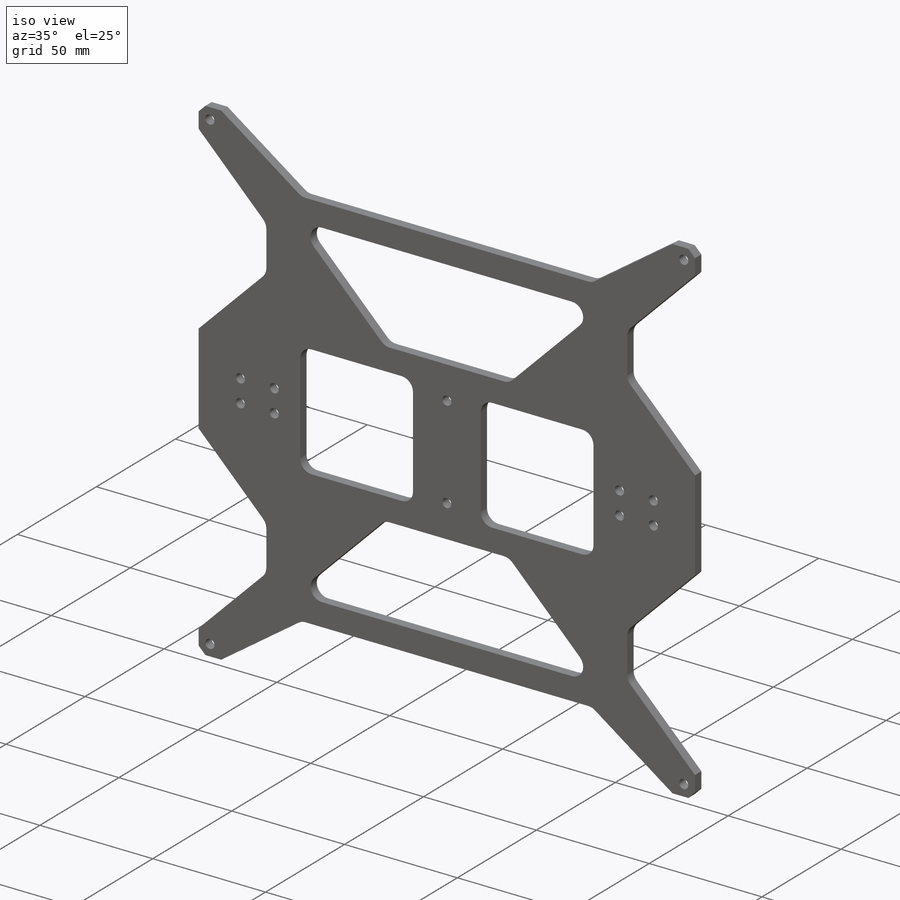
[diagram: iso view]
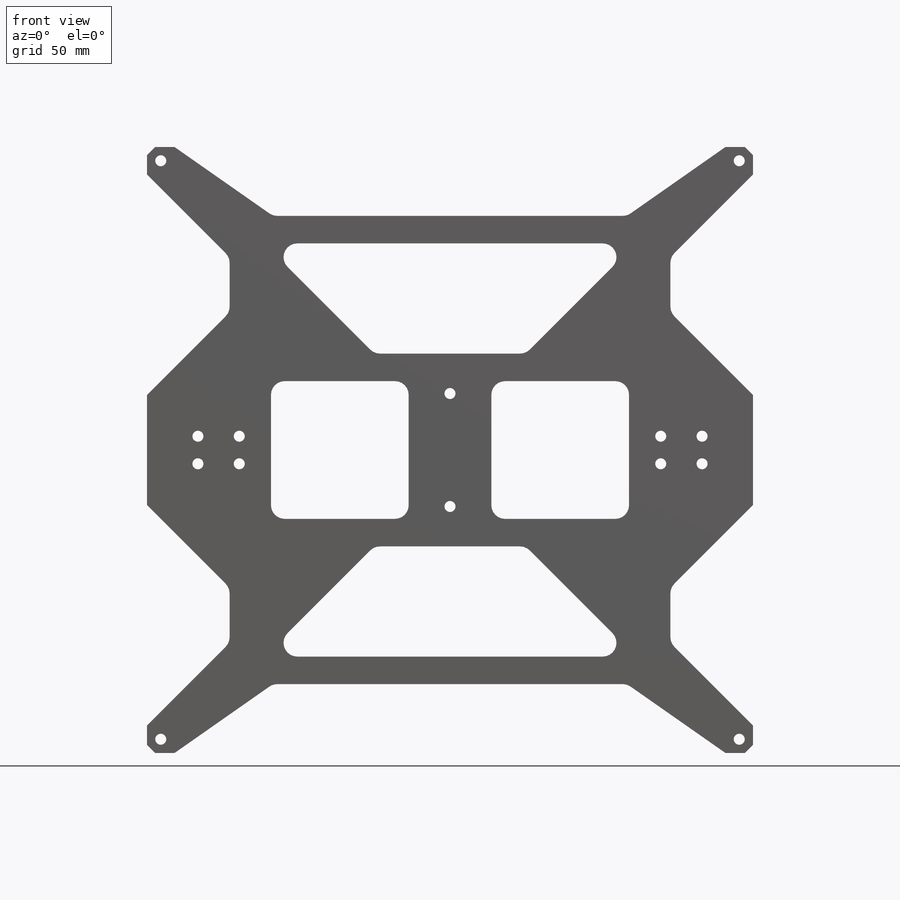
[diagram: front view]
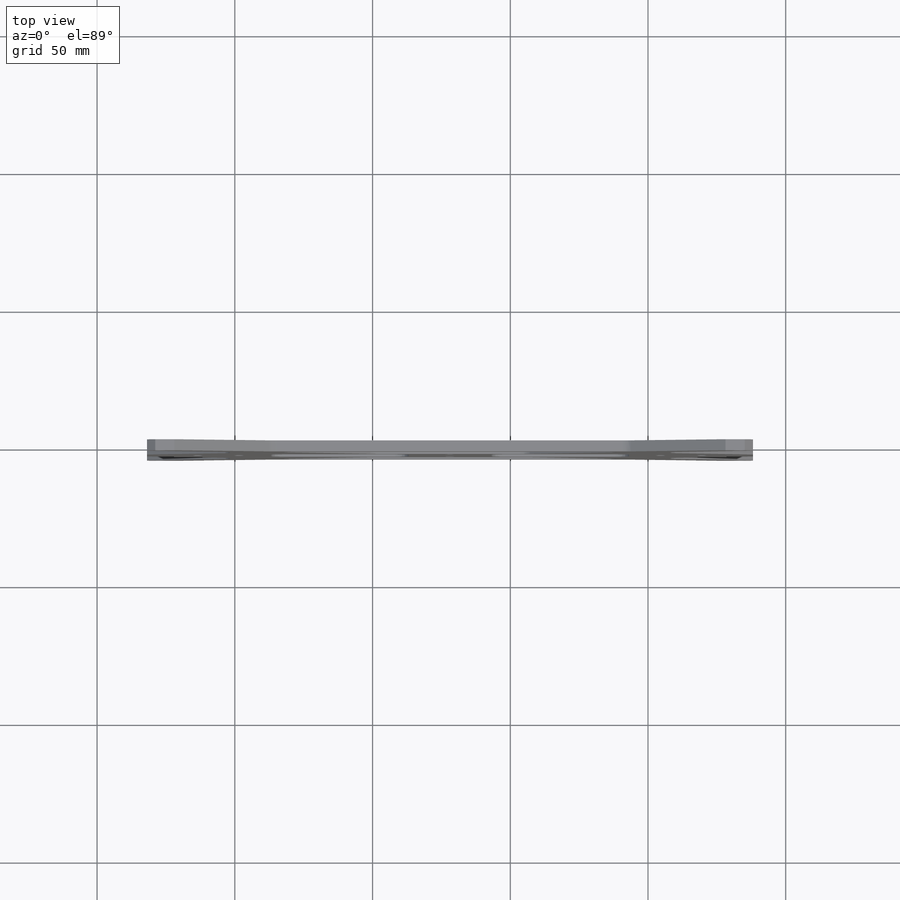
[diagram: top view]
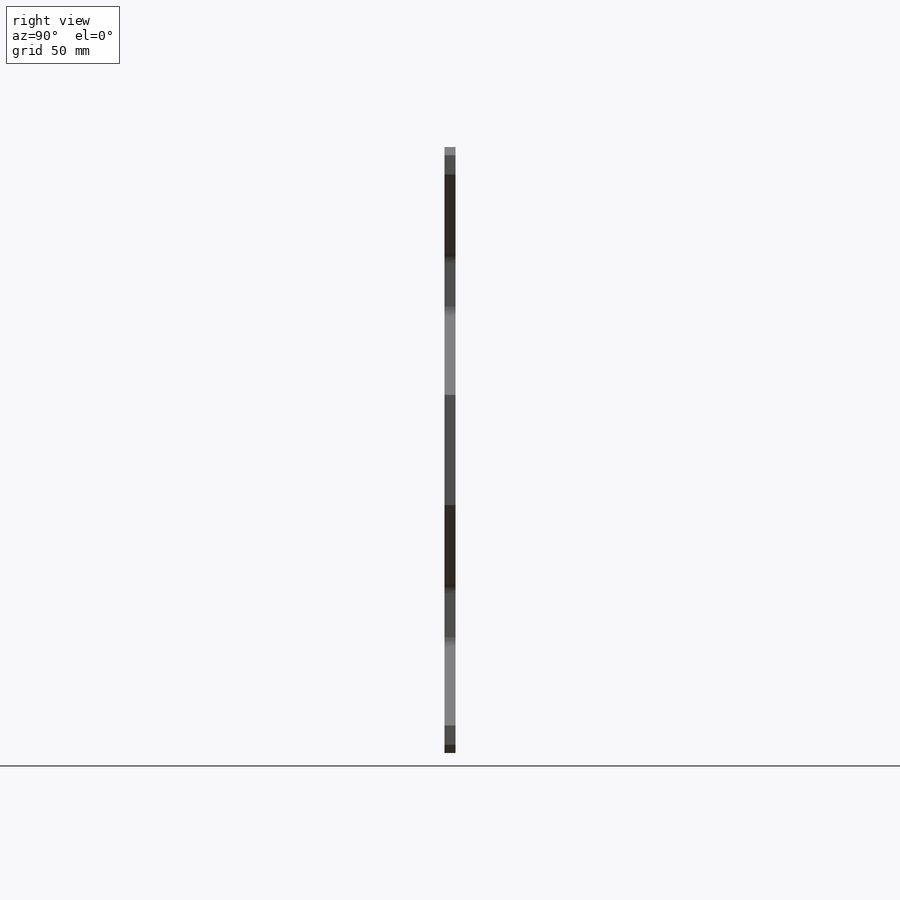
[diagram: right view]
SOLIDWORKS PART (.sldprt)
format: sldprt  version: not decoded by parser v0  size: 464,896 bytes
history: native  units: mm
features: plane x3, sketch x2, chamfer x2, material x1, extrude x1, cut_extrude x1, fillet x1 (+10 scaffold rows collapsed)
feature tree (21):
  scaffold x10  (default folders/planes/origin — collapsed)
  material  "Matériau <non spécifié>"
  plane  "Plan de face"
  plane  "Plan de dessus"
  plane  "Plan de droite"
  sketch  "Esquisse1"  dims[c1.D2=4.0mm c1.D3=4.0mm c1.D4=4.0mm c1.D5=4.0mm c1.D14=4.0mm c1.D15=4.0mm c1.D16=4.0mm c1.D17=4.0mm c1.D22=4.0mm c1.D23=4.0mm c1.D24=4.0mm c1.D25=4.0mm c1.D33=4.0mm c1.D34=4.0mm c1.D1=220.0mm c1.220=220.0mm c1.D6=5.0mm c1.D7=5.0mm c1.D8=5.0mm c1.D9=~7.501156mm c2.D8=5.0mm c2.D9=5.0mm c2.D10=5.0mm c2.D11=5.0mm c2.D12=5.0mm c2.D13=5.0mm c2.D18=10.0mm c2.D19=10.0mm c2.D20=10.0mm c2.D21=10.0mm c2.D26=5.0mm c2.D27=15.0mm c2.D28=15.0mm c2.D29=7.5mm c2.D30=7.5mm c2.D31=26.0mm c2.D32=26.0mm c2.D33=7.5mm c2.D35=41.0mm c2.D36=20.5mm]
  extrude  "Boss.-Extru.1"  Depth=4mm
  sketch  "Esquisse2"  dims[c1.D33=~24.670168mm c1.D1=~160.612078mm c2.D1=45.0deg c2.D2=~64.107006mm c3.D2=45.0deg c3.D3=~163.736826mm c4.D3=45.0deg c4.D4=~163.736826mm c5.D4=45.0deg c5.D5=177.0mm c5.D6=55.0mm c5.D7=55.0mm c5.D8=177.0mm c5.D9=27.5mm c5.D10=27.5mm c5.D11=10.0mm c5.D12=10.0mm c5.D13=~34.072474mm c6.D13=45.0deg c6.D14=~33.813083mm c7.D14=45.0deg c7.D15=30.0mm c7.D16=10.0mm c7.D17=~37.066014mm c8.D17=45.0deg c8.D18=~26.20963mm c9.D18=45.0deg c9.D19=30.0mm c9.D20=10.0mm c9.D21=80.0mm c9.D22=80.0mm c9.D23=80.0mm c9.D24=80.0mm c10.D24=45.0deg c10.D25=80.0mm c11.D25=45.0deg c11.D26=30.0mm c11.D27=10.0mm c11.D28=30.0mm c11.D29=10.0mm c11.D30=80.0mm c11.D31=80.0mm c12.D31=45.0deg c12.D32=80.0mm c13.D32=45.0deg c13.D33=~29.756466mm c14.D33=~8.510058deg c15.D33=43.0mm c15.D34=43.0mm c15.D35=10.0mm c15.D36=10.0mm c15.D37=10.0mm c15.D38=~14.030234mm c15.D39=5.0mm c15.D40=43.0mm c15.D41=43.0mm c15.D42=10.0mm c15.D43=10.0mm c15.D44=10.0mm c15.D45=10.0mm c15.D46=5.0mm c15.D47=15.0mm c15.D48=21.75mm c16.D48=~83.206754deg c17.D48=21.75mm c18.D48=~83.206754deg c18.D38=10.0mm c18.D43=15.0mm c19.D48=10.0mm c19.D12=61.0mm c19.D8=40.0mm c20.D12=70.0mm c20.D48=31.0mm c20.D5=35.0mm c21.D48=10.0mm c21.D49=10.0mm c21.D50=10.0mm c21.D51=~31.953573mm c22.D51=35.0deg c22.D52=~37.355298mm c23.D52=35.0deg c23.D11=10.0mm c23.D53=10.0mm c23.D54=10.0mm c23.D55=200.0mm c24.D55=35.0deg c24.D56=200.0mm c25.D56=35.0deg c25.D57=40.0mm c25.D58=~40.405592mm c25.D33=50.0mm c25.D34=50.0mm c25.D35=40.0mm c25.D36=50.0mm c25.D37=50.0mm c25.D38=40.0mm c25.D39=25.0mm c25.D40=25.0mm]
  cut_extrude  "Enlèv. mat.-Extru.1"  [1 undecoded]
  fillet  "Congé1"  Radius=5mm
  chamfer  "Chanfrein1"  Distance=3mm Angle=45deg
  chamfer  "Congé2"  Distance=5mm
decode coverage: 6 of 7 modeling features carry decoded parameters
note: ~ marks probable driven/reference dimensions
note: 1 parameter value undecoded
note: suppression state not decoded; provenance and decode notes live in map.json
